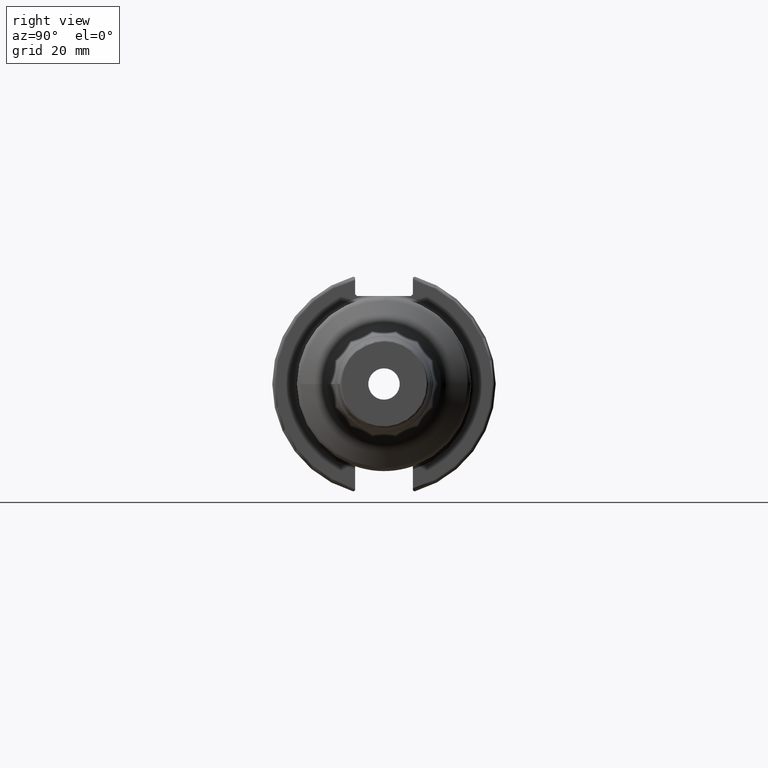
[diagram: clean part render]
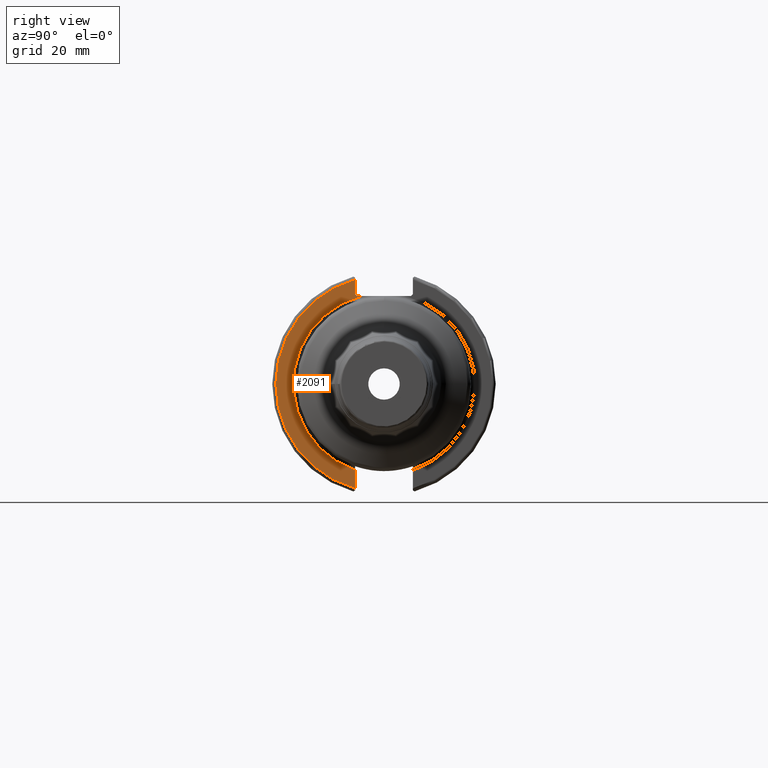
[diagram: same view with one face highlighted and labeled with its STEP entity id]
A machine part, right view. The second image highlights one B-rep face of the part: STEP entity #2091.
In plain terms, the highlighted planar face has unit normal (1, 0, 0).
Its self-contained STEP definition (entity closure, byte-faithful):
#50=PLANE('',#2307);
#210=FACE_OUTER_BOUND('',#319,.T.);
#319=EDGE_LOOP('',(#1572,#1573,#1574,#1575,#1576,#1577));
#425=LINE('',#3525,#524);
#426=LINE('',#3527,#525);
#427=LINE('',#3529,#526);
#428=LINE('',#3532,#527);
#524=VECTOR('',#2742,10.);
#525=VECTOR('',#2743,10.);
#526=VECTOR('',#2744,10.);
#527=VECTOR('',#2747,10.);
#695=CIRCLE('',#2305,25.75);
#697=CIRCLE('',#2308,30.75);
#863=VERTEX_POINT('',#3487);
#865=VERTEX_POINT('',#3499);
#867=VERTEX_POINT('',#3524);
#868=VERTEX_POINT('',#3526);
#869=VERTEX_POINT('',#3528);
#870=VERTEX_POINT('',#3530);
#1131=EDGE_CURVE('',#863,#865,#695,.T.);
#1135=EDGE_CURVE('',#863,#867,#425,.T.);
#1136=EDGE_CURVE('',#868,#867,#426,.T.);
#1137=EDGE_CURVE('',#868,#869,#427,.T.);
#1138=EDGE_CURVE('',#870,#869,#697,.T.);
#1139=EDGE_CURVE('',#870,#865,#428,.T.);
#1572=ORIENTED_EDGE('',*,*,#1131,.F.);
#1573=ORIENTED_EDGE('',*,*,#1135,.T.);
#1574=ORIENTED_EDGE('',*,*,#1136,.F.);
#1575=ORIENTED_EDGE('',*,*,#1137,.T.);
#1576=ORIENTED_EDGE('',*,*,#1138,.F.);
#1577=ORIENTED_EDGE('',*,*,#1139,.T.);
#2091=ADVANCED_FACE('',(#210),#50,.T.);
#2305=AXIS2_PLACEMENT_3D('',#3500,#2736,#2737);
#2307=AXIS2_PLACEMENT_3D('',#3523,#2740,#2741);
#2308=AXIS2_PLACEMENT_3D('',#3531,#2745,#2746);
#2736=DIRECTION('center_axis',(1.,0.,0.));
#2737=DIRECTION('ref_axis',(0.,6.12323399573677E-17,1.));
#2740=DIRECTION('center_axis',(1.,0.,0.));
#2741=DIRECTION('ref_axis',(0.,0.,-1.));
#2742=DIRECTION('',(0.,-1.,0.));
#2743=DIRECTION('',(0.,0.70710678118655,-0.707106781186545));
#2744=DIRECTION('',(0.,0.,1.));
#2745=DIRECTION('center_axis',(-1.,0.,0.));
#2746=DIRECTION('ref_axis',(0.,-1.,1.60812264967664E-16));
#2747=DIRECTION('',(0.,0.,1.));
#3487=CARTESIAN_POINT('',(19.05,-6.16948133962654,25.));
#3499=CARTESIAN_POINT('',(19.05,-8.19,-24.4128326910254));
#3500=CARTESIAN_POINT('Origin',(19.05,0.,0.));
#3523=CARTESIAN_POINT('Origin',(19.05,0.,0.));
#3524=CARTESIAN_POINT('',(19.05,-7.69,25.));
#3525=CARTESIAN_POINT('',(19.05,0.,25.));
#3526=CARTESIAN_POINT('',(19.05,-8.19,25.5));
#3527=CARTESIAN_POINT('',(19.05,0.357500000000014,16.9525));
#3528=CARTESIAN_POINT('',(19.05,-8.19,29.6392712461019));
#3529=CARTESIAN_POINT('',(19.05,-8.19,12.5));
#3530=CARTESIAN_POINT('',(19.05,-8.19,-29.6392712461019));
#3531=CARTESIAN_POINT('Origin',(19.05,0.,0.));
#3532=CARTESIAN_POINT('',(19.05,-8.19,-11.3));